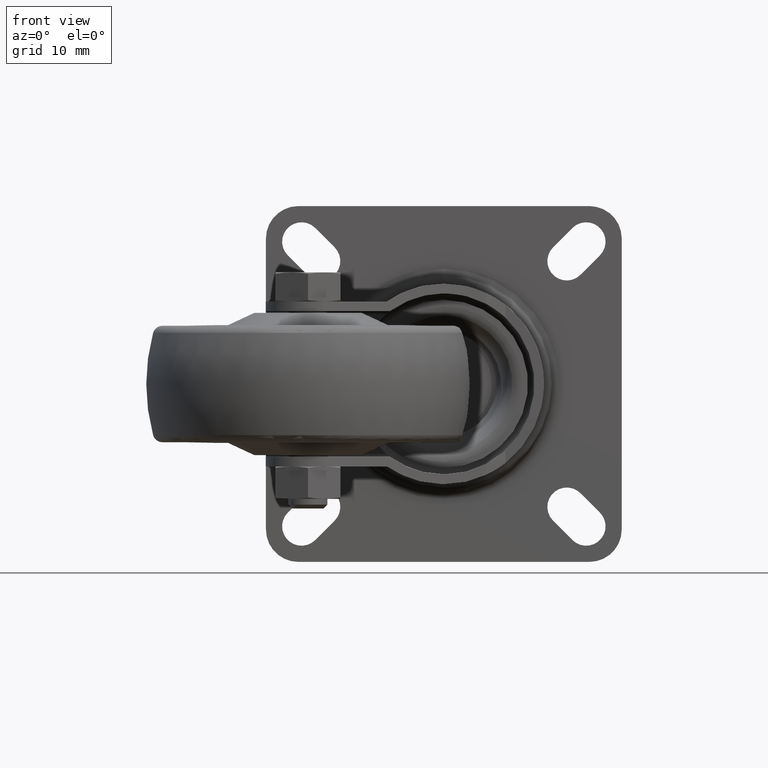
[diagram: clean part render]
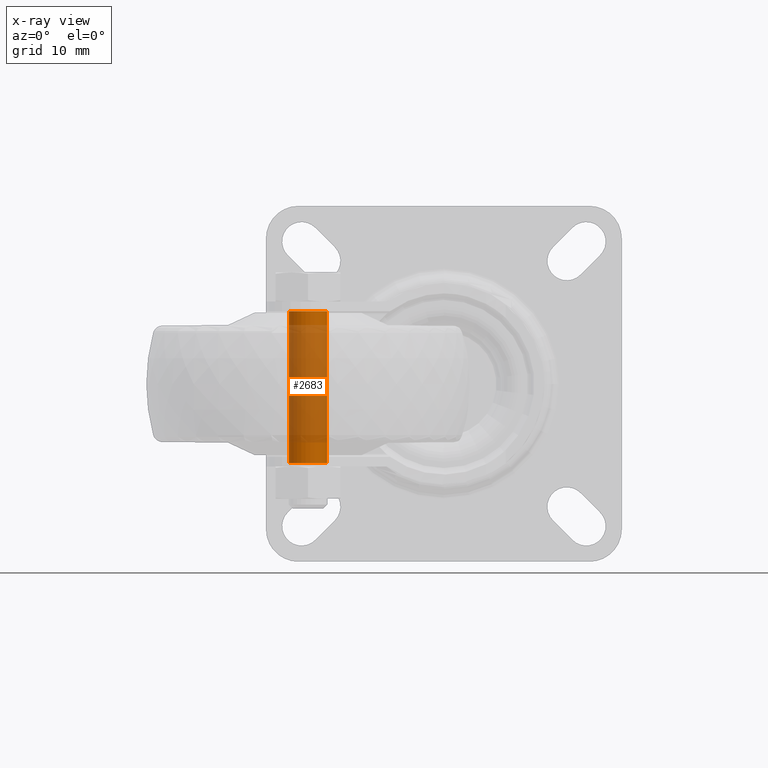
[diagram: x-ray — body ghosted, one internal face saturated and labeled with its STEP entity id]
A machine part, front view, then the same camera in x-ray: the body is ghosted and one INTERNAL B-rep face — a face not visible from any outside direction — is saturated and labeled: STEP entity #2683.
In plain terms, the highlighted cylindrical surface (bore or boss wall) has radius 2.95 mm, axis along (0, 0, -1).
Its self-contained STEP definition (entity closure, byte-faithful):
#141=LINE('',#4460,#270);
#270=VECTOR('',#3497,2.95);
#399=CYLINDRICAL_SURFACE('',#3066,2.95);
#546=FACE_OUTER_BOUND('',#728,.T.);
#728=EDGE_LOOP('',(#1865,#1866,#1867,#1868));
#940=CIRCLE('',#3065,2.95);
#941=CIRCLE('',#3067,2.95);
#1197=VERTEX_POINT('',#4455);
#1198=VERTEX_POINT('',#4458);
#1452=EDGE_CURVE('',#1197,#1197,#940,.T.);
#1453=EDGE_CURVE('',#1198,#1198,#941,.T.);
#1454=EDGE_CURVE('',#1198,#1197,#141,.T.);
#1865=ORIENTED_EDGE('',*,*,#1453,.F.);
#1866=ORIENTED_EDGE('',*,*,#1454,.T.);
#1867=ORIENTED_EDGE('',*,*,#1452,.T.);
#1868=ORIENTED_EDGE('',*,*,#1454,.F.);
#2683=ADVANCED_FACE('',(#546),#399,.T.);
#3065=AXIS2_PLACEMENT_3D('',#4456,#3491,#3492);
#3066=AXIS2_PLACEMENT_3D('',#4457,#3493,#3494);
#3067=AXIS2_PLACEMENT_3D('',#4459,#3495,#3496);
#3491=DIRECTION('center_axis',(1.,0.,0.));
#3492=DIRECTION('ref_axis',(0.,0.,-1.));
#3493=DIRECTION('center_axis',(1.,0.,0.));
#3494=DIRECTION('ref_axis',(0.,0.,-1.));
#3495=DIRECTION('center_axis',(1.,0.,0.));
#3496=DIRECTION('ref_axis',(0.,0.,-1.));
#3497=DIRECTION('',(-1.,0.,0.));
#4455=CARTESIAN_POINT('',(0.,-3.61270805748469E-16,2.95));
#4456=CARTESIAN_POINT('Origin',(0.,0.,0.));
#4457=CARTESIAN_POINT('Origin',(30.5,0.,0.));
#4458=CARTESIAN_POINT('',(23.5,-3.61270805748469E-16,2.95));
#4459=CARTESIAN_POINT('Origin',(23.5,0.,0.));
#4460=CARTESIAN_POINT('',(30.5,-3.61270805748469E-16,2.95));